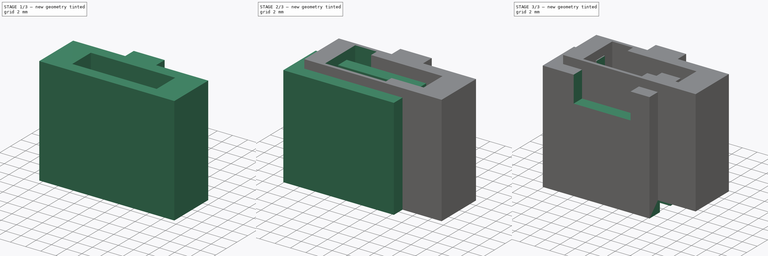
[diagram: build sequence overview — one tinted view per stage of 3, left to right]
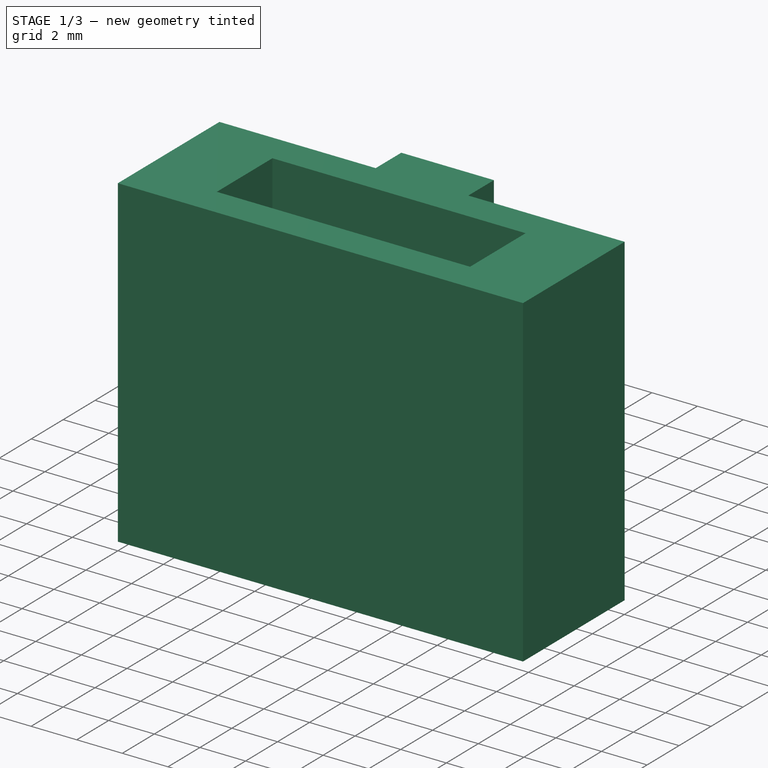
[diagram: stage 1 of 3 — iso view after this stage's code; geometry added in this stage tinted green]
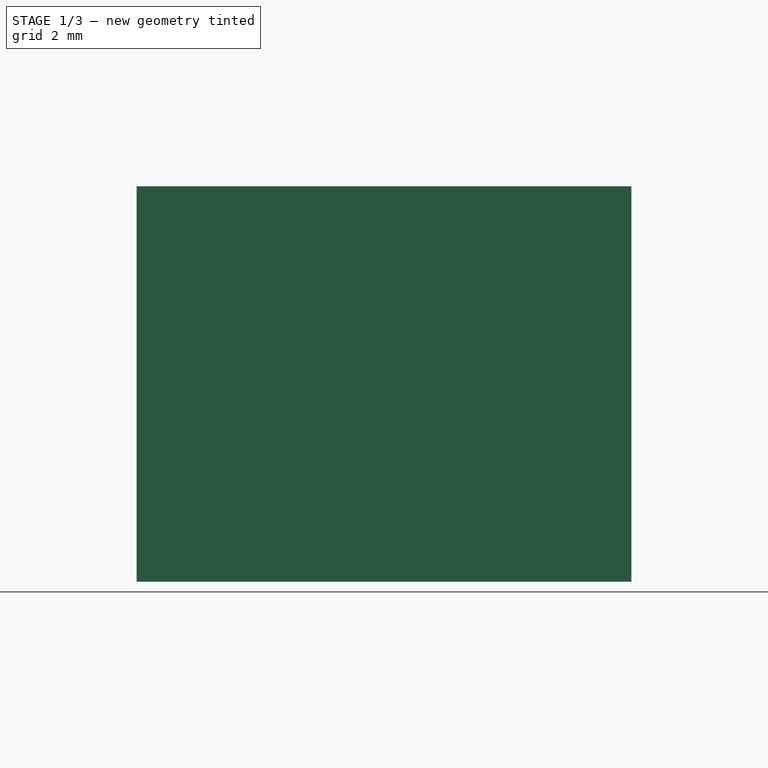
[diagram: stage 1 of 3 — front view after this stage's code; geometry added in this stage tinted green]
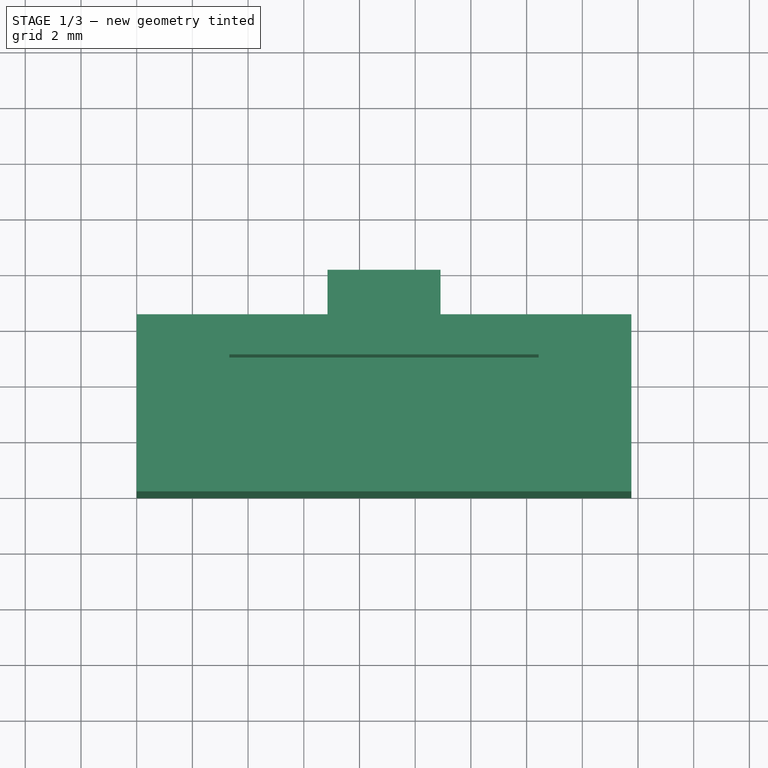
[diagram: stage 1 of 3 — top view after this stage's code; geometry added in this stage tinted green]
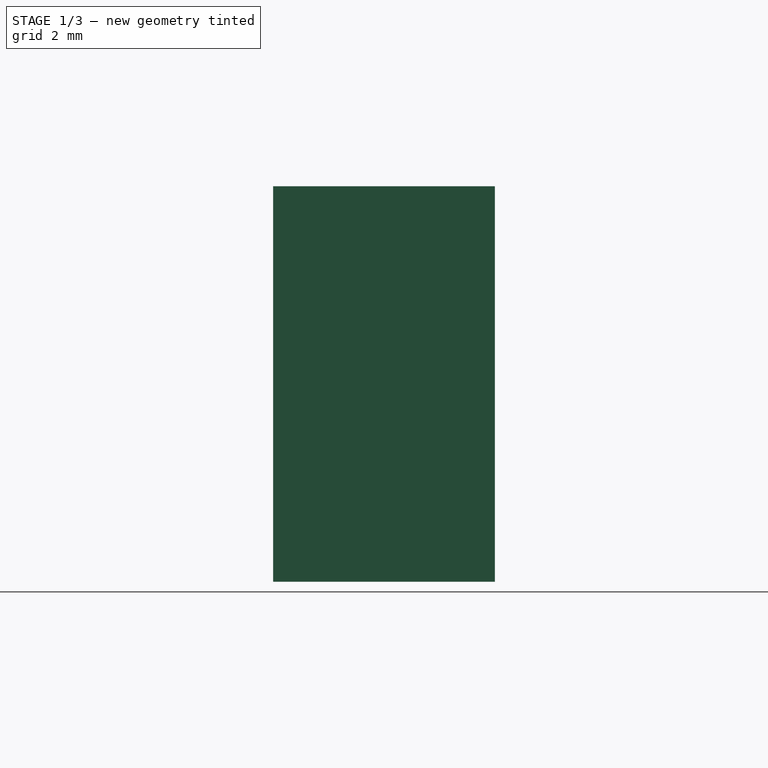
[diagram: stage 1 of 3 — right view after this stage's code; geometry added in this stage tinted green]
FCSTD DOCUMENT  (FreeCAD 0.21R33668 +7 (Git))
Label: stlink-conn
License: All rights reserved
LicenseURL: http://en.wikipedia.org/wiki/All_rights_reserved
objects: Sketcher::SketchObject×6, PartDesign::Pad×3, PartDesign::Pocket×3, PartDesign::Body×2, Spreadsheet::Sheet×1
note: 20 computed .brp shape members not serialized (recipe doc carries the construction recipe); baked Part::Feature solids carry a one-line shape summary decoded from their .brp

FEATURE [PartDesign::Body] Body  label="A"
  Group = -> [Sketch,Pad,Sketch001,Pocket,Sketch002,Pad001]
  Origin = -> Origin
  Placement = pos=(0,0,1.6) rot=(0,0,1;0rad)
  Tip = -> Pad001
  expr: .Placement.Base.z = <<Param>>.T_WALL
FEATURE [Sketcher::SketchObject] Sketch003  label="BBaseSketch"
  FullyConstrained = true
  MapMode = 5
  Support = -> [XY_Plane001]
  expr: .Constraints.X1 = <<Param>>.W_BASE_B - 2 * <<Param>>.T_XY
  expr: .Constraints.Y1 = <<Param>>.H_BASE_B - 2 * <<Param>>.T_XY
  expr: Constraints[21] = <<Param>>.W_CODE_B - 2 * <<Param>>.T_XY
  expr: Constraints[22] = <<Param>>.T_WALL
  sketch-geometry (8):
    g0: LineSegment StartX=0 StartY=0 StartZ=0 EndX=17.76 EndY=0 EndZ=0
    g1: LineSegment StartX=17.76 StartY=0 StartZ=0 EndX=17.76 EndY=6.36 EndZ=0
    g2: LineSegment StartX=0 StartY=6.36 StartZ=0 EndX=0 EndY=0 EndZ=0
    g3: LineSegment StartX=10.91 StartY=6.36 StartZ=0 EndX=10.91 EndY=7.96 EndZ=0
    g4: LineSegment StartX=10.91 StartY=7.96 StartZ=0 EndX=6.85 EndY=7.96 EndZ=0
    g5: LineSegment StartX=6.85 StartY=7.96 StartZ=0 EndX=6.85 EndY=6.36 EndZ=0
    g6: LineSegment StartX=17.76 StartY=6.36 StartZ=0 EndX=10.91 EndY=6.36 EndZ=0
    g7: LineSegment StartX=6.85 StartY=6.36 StartZ=0 EndX=0 EndY=6.36 EndZ=0
  constraints (23):
    c: Coincident(g0,g1)
    c: Coincident(g1,g6)
    c: Coincident(g2,g0)
    c: Horizontal(g0)
    c: Vertical(g1)
    c: Vertical(g2)
    c: Coincident(g0,g-1)
    c: DistanceX(g1) = 17.76  'X1'
    c: DistanceY(g1) = 6.36  'Y1'
    c: Coincident(g3,g4)
    c: Coincident(g4,g5)
    c: Coincident(g5,g7)
    c: Horizontal(g4)
    c: Vertical(g3)
    c: Vertical(g5)
    c: Horizontal(g6)
    c: Horizontal(g7)
    c: Coincident(g3,g6)
    c: Coincident(g2,g7)
    c: Horizontal(g5,g3)
    c: Equal(g7,g6)
    c: DistanceX(g4,g4) = 4.06
    c: DistanceY(g3,g3) = 1.6
FEATURE [PartDesign::Pad] Pad002  label="BBasePad"
  Direction = (0,0,1)
  Length = 14.2
  Length2 = 10
  Profile = -> Sketch003
  ReferenceAxis = -> Sketch003 [N_Axis]
  Type = 0
  expr: Length = <<Param>>.D_BASE_B + <<Param>>.D_EXTEND_B + <<Param>>.T_WALL - <<Param>>.T_Z
FEATURE [Sketcher::SketchObject] Sketch004  label="BPinInletSketch"
  AttachmentOffset = pos=(0,0,7.7) rot=(0,0,1;0rad)
  FullyConstrained = true
  MapMode = 5
  Placement = pos=(0,0,7.7) rot=(0,0,1;0rad)
  Support = -> [XY_Plane001]
  expr: .AttachmentOffset.Base.z = <<Param>>.T_WALL + <<Param>>.D_EXTEND_B
  expr: Constraints[19] = <<BBaseSketch>>.Constraints.X1
  expr: Constraints[20] = <<BBaseSketch>>.Constraints.Y1
  expr: Constraints[21] = 4 * <<Param>>.S_PIN + 2 * (<<Param>>.R_PIN + <<Param>>.T_XY)
  expr: Constraints[22] = <<Param>>.S_PIN + 2 * (<<Param>>.R_PIN + <<Param>>.T_XY)
  sketch-geometry (9):
    g0: LineSegment StartX=3.33 StartY=1.44 StartZ=0 EndX=14.43 EndY=1.44 EndZ=0
    g1: LineSegment StartX=14.43 StartY=1.44 StartZ=0 EndX=14.43 EndY=4.92 EndZ=0
    g2: LineSegment StartX=14.43 StartY=4.92 StartZ=0 EndX=3.33 EndY=4.92 EndZ=0
    g3: LineSegment StartX=3.33 StartY=4.92 StartZ=0 EndX=3.33 EndY=1.44 EndZ=0
    g4: LineSegment StartX=0 StartY=0 StartZ=0 EndX=17.76 EndY=0 EndZ=0
    g5: LineSegment StartX=17.76 StartY=0 StartZ=0 EndX=17.76 EndY=6.36 EndZ=0
    g6: LineSegment StartX=17.76 StartY=6.36 StartZ=0 EndX=0 EndY=6.36 EndZ=0
    g7: LineSegment StartX=0 StartY=6.36 StartZ=0 EndX=0 EndY=0 EndZ=0
    g8: GeomPoint X=8.88 Y=3.18 Z=0
  constraints (23):
    c: Coincident(g0,g1)
    c: Coincident(g1,g2)
    c: Coincident(g2,g3)
    c: Coincident(g3,g0)
    c: Horizontal(g0)
    c: Horizontal(g2)
    c: Vertical(g1)
    c: Vertical(g3)
    c: Coincident(g4,g5)
    c: Coincident(g5,g6)
    c: Coincident(g6,g7)
    c: Coincident(g7,g4)
    c: Horizontal(g4)
    c: Horizontal(g6)
    c: Vertical(g5)
    c: Vertical(g7)
    c: Coincident(g4,g-1)
    c: Symmetric(g5,g4,g8)
    c: Symmetric(g0,g1,g8)
    c: DistanceX(g5) = 17.76
    c: DistanceY(g5) = 6.36
    c: DistanceX(g0,g0) = 11.1
    c: DistanceY(g1,g1) = 3.48
FEATURE [PartDesign::Pocket] Pocket001  label="BPinInletPocket"
  BaseFeature = -> Pad002
  Direction = (0,0,-1)
  Length = 5
  Length2 = 5
  Profile = -> Sketch004
  ReferenceAxis = -> Sketch004 [N_Axis]
  Reversed = true
  Type = 1
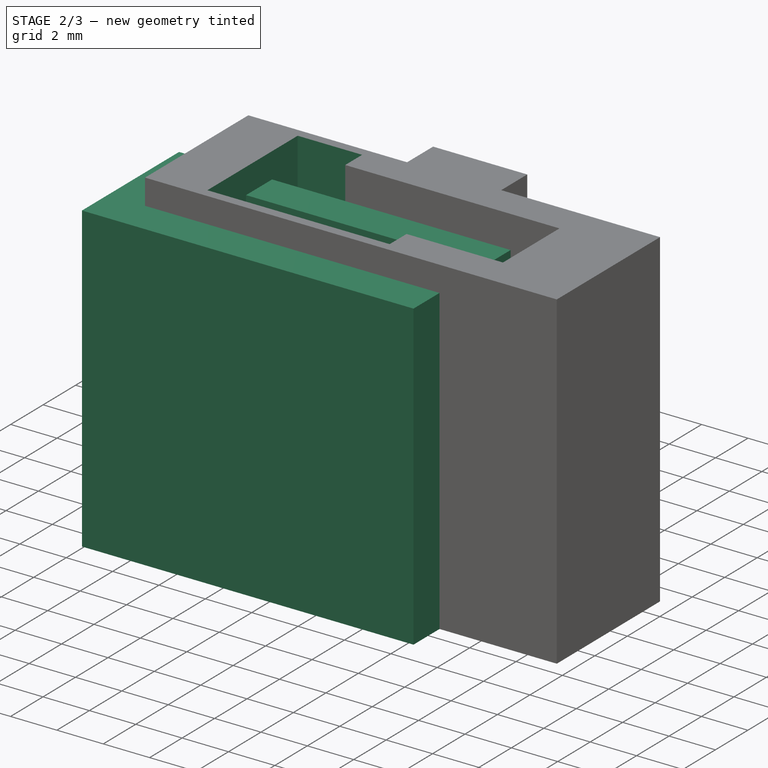
[diagram: stage 2 of 3 — iso view after this stage's code; geometry added in this stage tinted green]
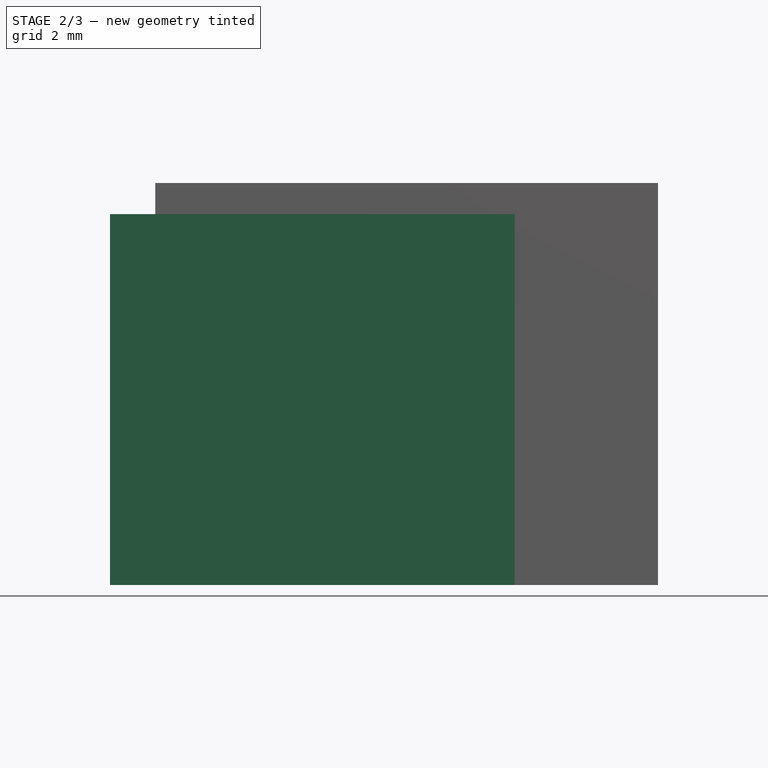
[diagram: stage 2 of 3 — front view after this stage's code; geometry added in this stage tinted green]
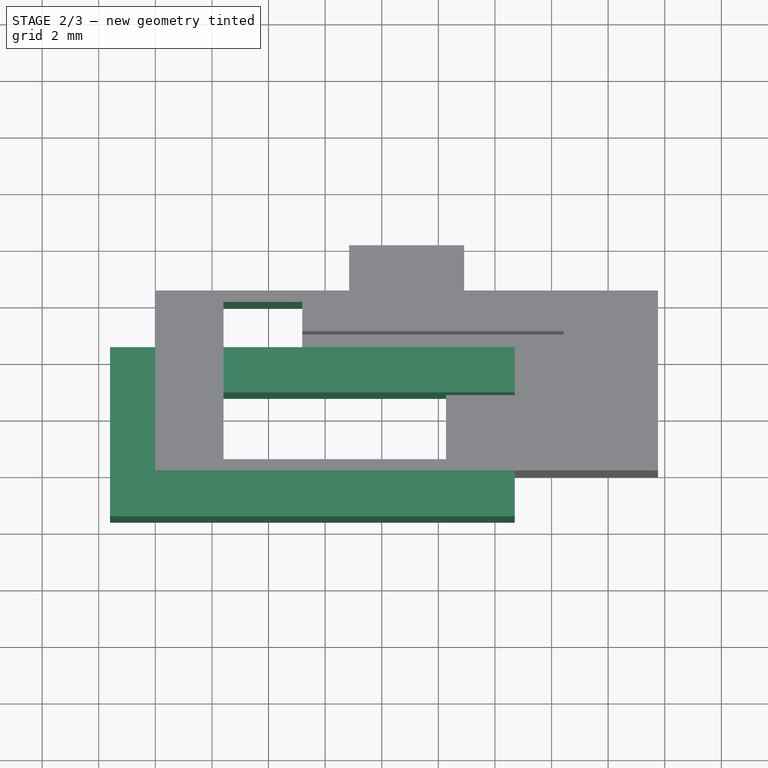
[diagram: stage 2 of 3 — top view after this stage's code; geometry added in this stage tinted green]
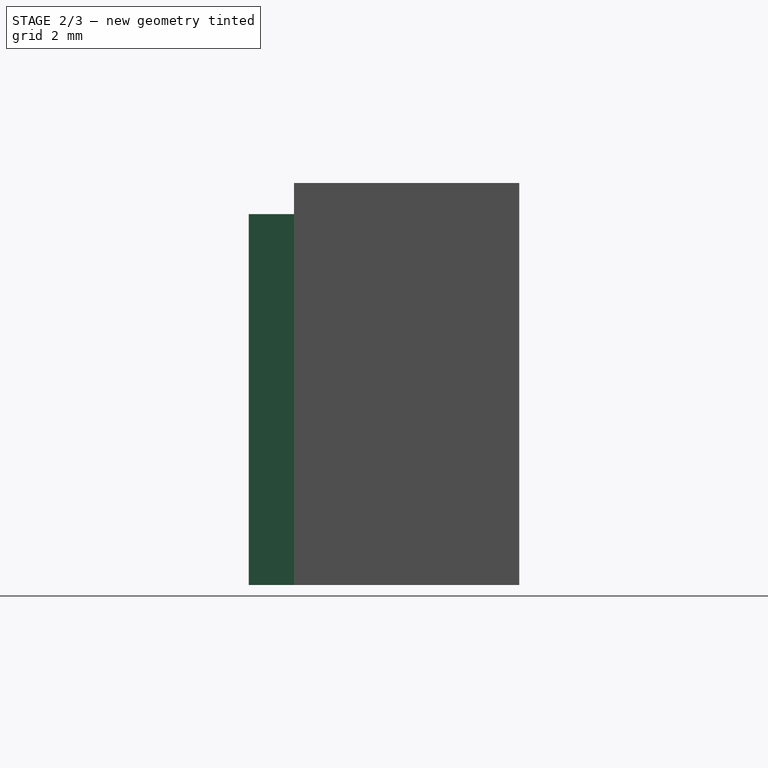
[diagram: stage 2 of 3 — right view after this stage's code; geometry added in this stage tinted green]
FEATURE [Spreadsheet::Sheet] Spreadsheet  label="Param"
  cells = A1='Key; B1='Value; C1='Description; A2='T_XY; B2(T_XY)==0.12 mm; C2='X/Y tolerancy.; A3='T_Z; B3(T_Z)==0.1 mm; C3='Z tolerancy.; A4='T_WALL; B4(T_WALL)==1.6 mm; C4='Wall thickness.; A5='D_BASE_A; B5(D_BASE_A)==12 mm; C5='Base depth for connector A.; A6='W_BASE_A; B6(W_BASE_A)==0.5 in; C6='Base width for connector A.; A7='H_BASE_A; B7(H_BASE_A)==0.1 in; C7='Base height for connector A.; A8='D_EXTEND_A; B8(D_EXTEND_A)==1.2 mm; C8='Extended depth for connector A coding.; A9='W_BASE_B; B9(W_BASE_B)==18 mm; C9='Base width of connector B.; A10='H_BASE_B; B10(H_BASE_B)==6.6 mm; C10='Base height of connector B.; A11='D_BASE_B; B11(D_BASE_B)==6.6 mm; C11='Base height of connector B.; A12='D_EXTEND_B; B12(D_EXTEND_B)==6.1 mm; C12='Extended depth for connector B coding.; A13='W_CODE_B; B13(W_CODE_B)==4.3 mm; C13='Connector B coding latch width.; A14='R_CABLE; B14(R_CABLE)==0.03 in; C14='Cable radius.; A15='R_PIN; B15(R_PIN)==0.35 mm; C15='Pin diameter.; A16='S_PIN; B16(S_PIN)==0.1 in; C16='Pin spacing.
FEATURE [Sketcher::SketchObject] Sketch  label="ABaseSketch"
  FullyConstrained = true
  MapMode = 5
  Support = -> [XY_Plane]
  expr: Constraints[20] = <<Param>>.T_WALL
  expr: Constraints[6] = <<Param>>.W_BASE_A
  expr: Constraints[7] = <<Param>>.H_BASE_A + 2 * <<Param>>.T_XY
  sketch-geometry (9):
    g0: LineSegment StartX=0 StartY=0 StartZ=0 EndX=12.7 EndY=0 EndZ=0
    g1: LineSegment StartX=12.7 StartY=2.78 StartZ=0 EndX=0 EndY=2.78 EndZ=0
    g2: LineSegment StartX=0 StartY=2.78 StartZ=0 EndX=0 EndY=0 EndZ=0
    g3: LineSegment StartX=-1.6 StartY=4.38 StartZ=0 EndX=12.7 EndY=4.38 EndZ=0
    g4: LineSegment StartX=12.7 StartY=-1.6 StartZ=0 EndX=-1.6 EndY=-1.6 EndZ=0
    g5: LineSegment StartX=-1.6 StartY=-1.6 StartZ=0 EndX=-1.6 EndY=4.38 EndZ=0
    g6: LineSegment StartX=12.7 StartY=4.38 StartZ=0 EndX=12.7 EndY=2.78 EndZ=0
    g7: LineSegment StartX=12.7 StartY=0 StartZ=0 EndX=12.7 EndY=-1.6 EndZ=0
    g8: LineSegment StartX=0 StartY=2.78 StartZ=0 EndX=-1.6 EndY=2.78 EndZ=0
  constraints (26):
    c: Coincident(g1,g2)
    c: Coincident(g2,g0)
    c: Horizontal(g0)
    c: Horizontal(g1)
    c: Vertical(g2)
    c: Coincident(g0,g-1)
    c: DistanceX(g0,g0) = 12.7
    c: DistanceY(g0,g1) = 2.78
    c: Coincident(g3,g6)
    c: Coincident(g7,g4)
    c: Coincident(g4,g5)
    c: Coincident(g5,g3)
    c: Horizontal(g3)
    c: Horizontal(g4)
    c: Vertical(g5)
    c: Vertical(g6)
    c: Vertical(g7)
    c: Coincident(g1,g6)
    c: Coincident(g0,g7)
    c: Equal(g6,g7)
    c: DistanceY(g7,g7) = 1.6
    c: Coincident(g8,g1)
    c: PointOnObject(g8,g5)
    c: Horizontal(g8)
    c: Equal(g8,g6)
    c: Vertical(g1,g0)
FEATURE [PartDesign::Pad] Pad  label="ABasePad"
  Direction = (0,0,1)
  Length = 13.1
  Length2 = 10
  Profile = -> Sketch
  ReferenceAxis = -> Sketch [N_Axis]
  Type = 0
  expr: Length = <<Param>>.D_BASE_A + <<Param>>.D_EXTEND_A - <<Param>>.T_Z
FEATURE [Sketcher::SketchObject] Sketch005  label="BCableInletSketch"
  FullyConstrained = true
  MapMode = 5
  Support = -> [XY_Plane001]
  expr: Constraints[15] = <<BBaseSketch>>.Constraints.X1
  expr: Constraints[16] = <<BBaseSketch>>.Constraints.Y1
  expr: Constraints[27] = 3 * <<Param>>.S_PIN + 2 * <<Param>>.T_XY
  expr: Constraints[35] = 5 * <<Param>>.S_PIN + 2 * <<Param>>.T_XY
  expr: Constraints[5] = <<Param>>.S_PIN + 2 * <<Param>>.T_XY
  sketch-geometry (15):
    g0: LineSegment StartX=2.41 StartY=5.96 StartZ=0 EndX=5.19 EndY=5.96 EndZ=0
    g1: LineSegment StartX=2.41 StartY=5.96 StartZ=0 EndX=2.41 EndY=0.4 EndZ=0
    g2: LineSegment StartX=2.41 StartY=0.4 StartZ=0 EndX=10.27 EndY=0.4 EndZ=0
    g3: LineSegment StartX=0 StartY=0 StartZ=0 EndX=17.76 EndY=0 EndZ=0
    g4: LineSegment StartX=17.76 StartY=0 StartZ=0 EndX=17.76 EndY=6.36 EndZ=0
    g5: LineSegment StartX=17.76 StartY=6.36 StartZ=0 EndX=0 EndY=6.36 EndZ=0
    g6: LineSegment StartX=0 StartY=6.36 StartZ=0 EndX=0 EndY=0 EndZ=0
    g7: LineSegment StartX=15.35 StartY=0.4 StartZ=0 EndX=15.35 EndY=0 EndZ=0
    g8: LineSegment StartX=5.19 StartY=5.96 StartZ=0 EndX=5.19 EndY=6.36 EndZ=0
    g9: LineSegment StartX=2.41 StartY=0.4 StartZ=0 EndX=0 EndY=0.4 EndZ=0
    g10: LineSegment StartX=15.35 StartY=0.4 StartZ=0 EndX=17.76 EndY=0.4 EndZ=0
    g11: LineSegment StartX=10.27 StartY=0.4 StartZ=0 EndX=15.35 EndY=0.4 EndZ=0
    g12: LineSegment StartX=10.27 StartY=3.18 StartZ=0 EndX=10.27 EndY=0.4 EndZ=0
    g13: LineSegment StartX=5.19 StartY=5.96 StartZ=0 EndX=5.19 EndY=3.18 EndZ=0
    g14: LineSegment StartX=5.19 StartY=3.18 StartZ=0 EndX=10.27 EndY=3.18 EndZ=0
  constraints (44):
    c: Coincident(g0,g13)
    c: Horizontal(g0)
    c: Coincident(g1,g2)
    c: Horizontal(g2)
    c: Vertical(g1)
    c: DistanceX(g0,g0) = 2.78
    c: Coincident(g3,g4)
    c: Coincident(g4,g5)
    c: Coincident(g5,g6)
    c: Coincident(g6,g3)
    c: Horizontal(g3)
    c: Horizontal(g5)
    c: Vertical(g4)
    c: Vertical(g6)
    c: Coincident(g3,g-1)
    c: DistanceX(g4) = 17.76
    c: DistanceY(g4) = 6.36
    c: PointOnObject(g7,g3)
    c: Vertical(g7)
    c: Coincident(g8,g0)
    c: PointOnObject(g8,g5)
    c: Vertical(g8)
    c: Equal(g8,g7)
    c: PointOnObject(g9,g6)
    c: Horizontal(g9)
    c: PointOnObject(g10,g4)
    c: Horizontal(g10)
    c: DistanceX(g2,g2) = 7.86
    c: Equal(g10,g9)
    c: Coincident(g12,g2)
    c: Coincident(g1,g9)
    c: Coincident(g11,g12)
    c: Coincident(g11,g7)
    c: Horizontal(g11)
    c: Coincident(g10,g7)
    c: DistanceX(g1,g7) = 12.94
    c: Coincident(g14,g12)
    c: Vertical(g12)
    c: Coincident(g13,g14)
    c: Vertical(g13)
    c: Horizontal(g14)
    c: Equal(g0,g12)
    c: Coincident(g0,g1)
    c: Equal(g12,g13)
FEATURE [PartDesign::Pocket] Pocket002  label="BCableInletPocket"
  BaseFeature = -> Pocket001
  Direction = (0,0,-1)
  Length = 5
  Length2 = 5
  Profile = -> Sketch005
  ReferenceAxis = -> Sketch005 [N_Axis]
  Reversed = true
  Type = 1
FEATURE [PartDesign::Body] Body001  label="B"
  Group = -> [Sketch003,Pad002,Sketch004,Pocket001,Sketch005,Pocket002]
  Origin = -> Origin001
  Tip = -> Pocket002
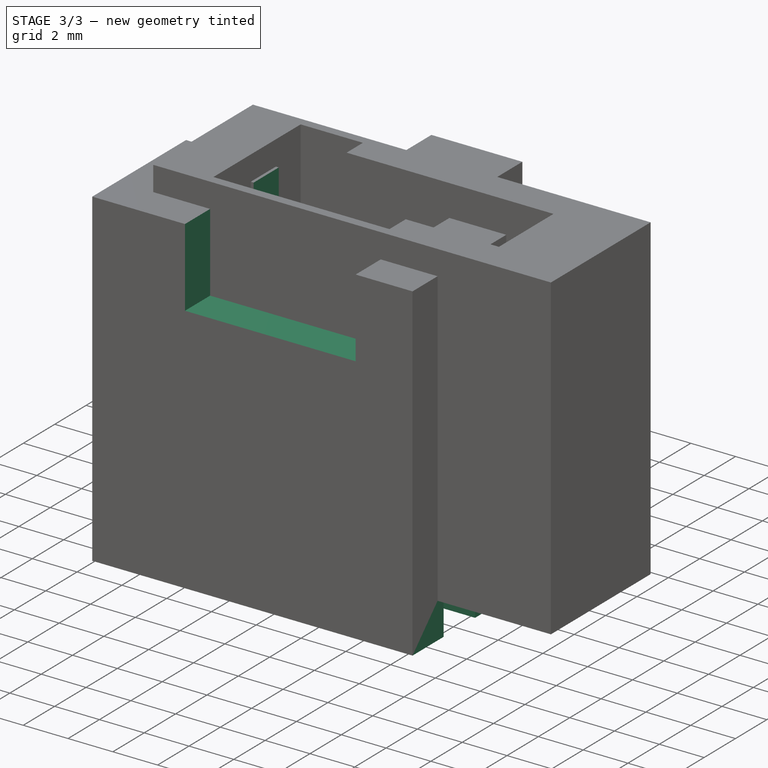
[diagram: stage 3 of 3 — iso view after this stage's code; geometry added in this stage tinted green]
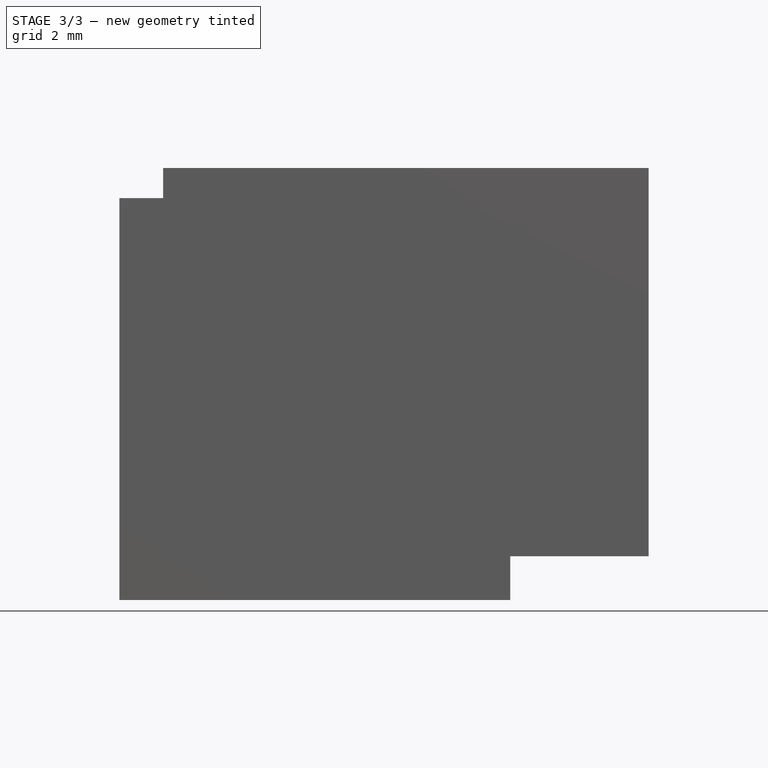
[diagram: stage 3 of 3 — front view after this stage's code; geometry added in this stage tinted green]
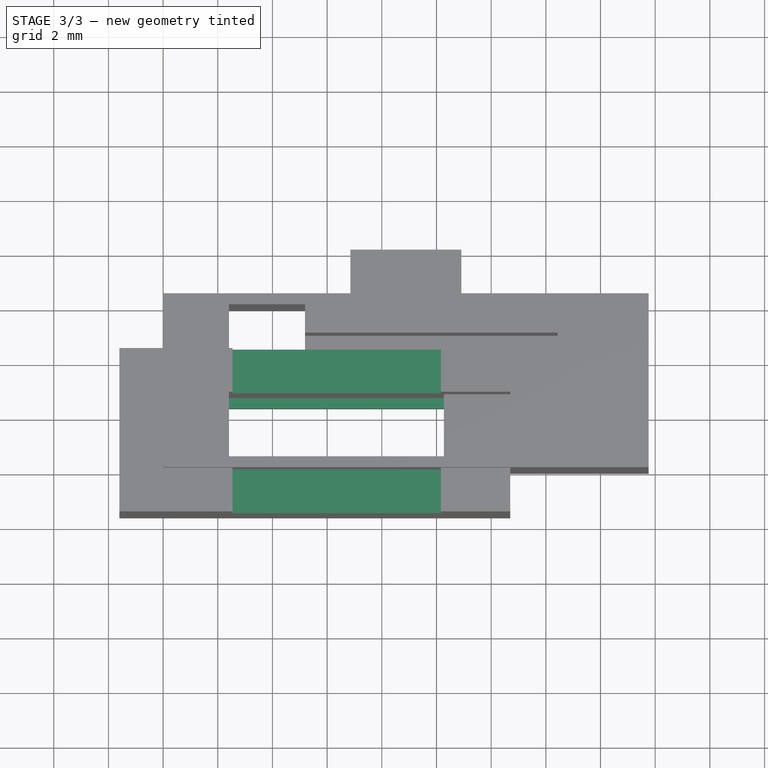
[diagram: stage 3 of 3 — top view after this stage's code; geometry added in this stage tinted green]
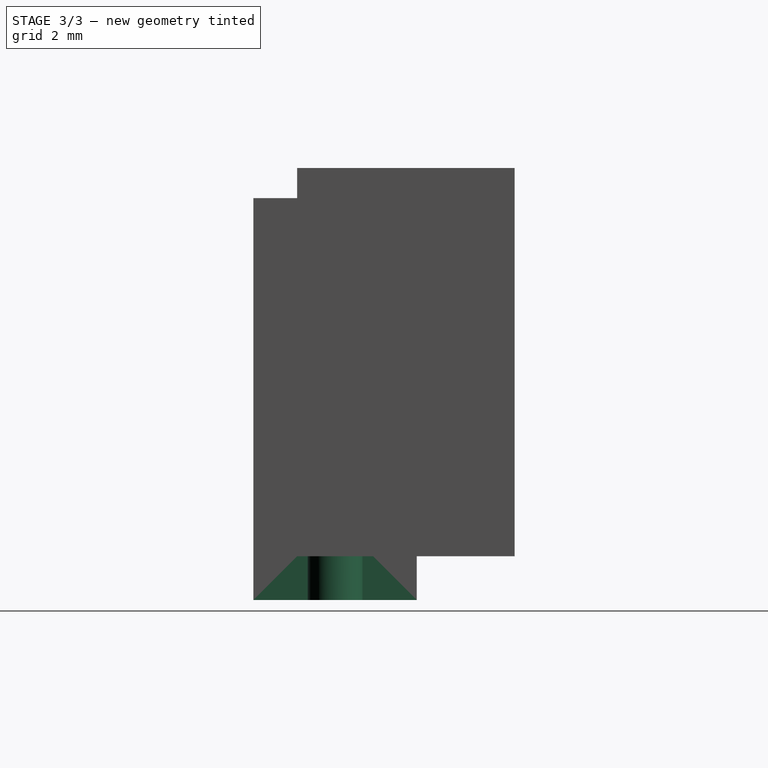
[diagram: stage 3 of 3 — right view after this stage's code; geometry added in this stage tinted green]
FEATURE [Sketcher::SketchObject] Sketch001  label="APullSketch"
  AttachmentOffset = pos=(0,0,9.6) rot=(0,0,1;0rad)
  FullyConstrained = true
  MapMode = 5
  Placement = pos=(0,0,9.6) rot=(0,0,1;0rad)
  Support = -> [XY_Plane]
  expr: .AttachmentOffset.Base.z = <<Param>>.D_BASE_A + <<Param>>.D_EXTEND_A - (<<Param>>.D_EXTEND_A + <<Param>>.D_BASE_A * 0.2)
  expr: Constraints[10] = <<Param>>.W_BASE_A * 0.2
  expr: Constraints[11] = <<Param>>.W_BASE_A * 0.8
  expr: Constraints[8] = -<<Param>>.T_WALL
  expr: Constraints[9] = <<Param>>.H_BASE_A + 2 * <<Param>>.T_XY + 2 * <<Param>>.T_WALL
  sketch-geometry (4):
    g0: LineSegment StartX=2.54 StartY=4.38 StartZ=0 EndX=10.16 EndY=4.38 EndZ=0
    g1: LineSegment StartX=10.16 StartY=4.38 StartZ=0 EndX=10.16 EndY=-1.6 EndZ=0
    g2: LineSegment StartX=10.16 StartY=-1.6 StartZ=0 EndX=2.54 EndY=-1.6 EndZ=0
    g3: LineSegment StartX=2.54 StartY=-1.6 StartZ=0 EndX=2.54 EndY=4.38 EndZ=0
  constraints (12):
    c: Coincident(g0,g1)
    c: Coincident(g1,g2)
    c: Coincident(g2,g3)
    c: Coincident(g3,g0)
    c: Horizontal(g0)
    c: Horizontal(g2)
    c: Vertical(g1)
    c: Vertical(g3)
    c: DistanceY(g2) = -1.6
    c: DistanceY(g3,g3) = 5.98
    c: DistanceX(g2) = 2.54
    c: DistanceX(g1) = 10.16
FEATURE [PartDesign::Pocket] Pocket  label="APullPocket"
  BaseFeature = -> Pad
  Direction = (0,0,-1)
  Length = 2.36
  Length2 = 5
  Profile = -> Sketch001
  ReferenceAxis = -> Sketch001 [N_Axis]
  Reversed = true
  Type = 1
FEATURE [Sketcher::SketchObject] Sketch002  label="ACableInletSketch"
  FullyConstrained = true
  MapMode = 5
  Support = -> [XY_Plane]
  expr: Constraints[12] = <<Param>>.H_BASE_A + 2 * <<Param>>.T_XY
  expr: Constraints[19] = <<Param>>.T_WALL + <<Param>>.W_BASE_A
  expr: Constraints[22] = <<Param>>.T_WALL
  expr: Constraints[27] = <<Param>>.R_CABLE + 2 * <<Param>>.T_XY
  expr: Constraints[28] = -<<Param>>.T_WALL
  expr: Constraints[30] = <<Param>>.H_BASE_A + 2 * <<Param>>.T_WALL + 2 * <<Param>>.T_XY
  sketch-geometry (12):
    g0: LineSegment StartX=-1.6 StartY=4.38 StartZ=0 EndX=12.7 EndY=4.38 EndZ=0
    g1: LineSegment StartX=12.7 StartY=4.38 StartZ=0 EndX=12.7 EndY=2.392 EndZ=0
    g2: LineSegment StartX=12.7 StartY=-1.6 StartZ=0 EndX=-1.6 EndY=-1.6 EndZ=0
    g3: LineSegment StartX=-1.6 StartY=-1.6 StartZ=0 EndX=-1.6 EndY=4.38 EndZ=0
    g4: LineSegment StartX=1.002 StartY=2.392 StartZ=0 EndX=12.7 EndY=2.392 EndZ=0
    g5: LineSegment StartX=12.7 StartY=0.388 StartZ=0 EndX=1.002 EndY=0.388 EndZ=0
    g6: LineSegment StartX=12.7 StartY=0.388 StartZ=0 EndX=12.7 EndY=-1.6 EndZ=0
    g7: LineSegment StartX=0 StartY=2.78 StartZ=0 EndX=-1.6 EndY=2.78 EndZ=0
    g8: ArcOfCircle CenterX=1.002 CenterY=1.39 CenterZ=0 NormalX=0 NormalY=0 NormalZ=1 AngleXU=0 Radius=1.002 StartAngle=1.5708 EndAngle=4.71239
    g9: GeomPoint X=0 Y=0 Z=0
    g10: GeomPoint X=0 Y=2.78 Z=0
    g11: LineSegment StartX=0 StartY=2.78 StartZ=0 EndX=0 EndY=0 EndZ=0
  constraints (31):
    c: Coincident(g0,g1)
    c: Coincident(g6,g2)
    c: Coincident(g2,g3)
    c: Coincident(g3,g0)
    c: Horizontal(g0)
    c: Horizontal(g2)
    c: Vertical(g1)
    c: Vertical(g3)
    c: Horizontal(g4)
    c: Horizontal(g5)
    c: Vertical(g5,g1)
    c: Coincident(g9,g-1)
    c: DistanceY(g9,g10) = 2.78
    c: Coincident(g5,g6)
    c: Coincident(g1,g4)
    c: Coincident(g7,g10)
    c: PointOnObject(g7,g3)
    c: Horizontal(g7)
    c: Equal(g1,g6)
    c: DistanceX(g2,g2) = 14.3
    c: Vertical(g6)
    c: Tangent(g5,g8) = 1.5708
    c: DistanceX(g7,g7) = 1.6
    c: Tangent(g4,g8) = 1.5708
    c: Coincident(g11,g7)
    c: Coincident(g11,g9)
    c: Vertical(g11)
    c: Radius(g8) = 1.002
    c: DistanceY(g2) = -1.6
    c: Tangent(g8,g11)
    c: DistanceY(g3,g3) = 5.98
FEATURE [PartDesign::Pad] Pad001  label="ACableInletPad"
  BaseFeature = -> Pocket
  Direction = (0,0,1)
  Length = 1.6
  Length2 = 10
  Profile = -> Sketch002
  ReferenceAxis = -> Sketch002 [N_Axis]
  Refine = true
  Reversed = true
  Type = 0
  expr: Length = <<Param>>.T_WALL
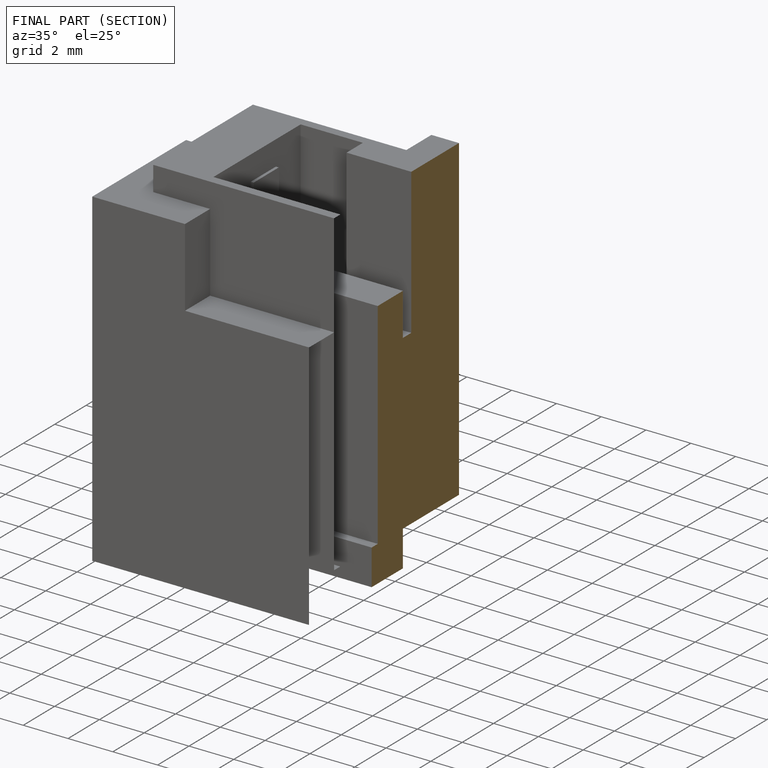
[diagram: finished part — half-section view (interior)]
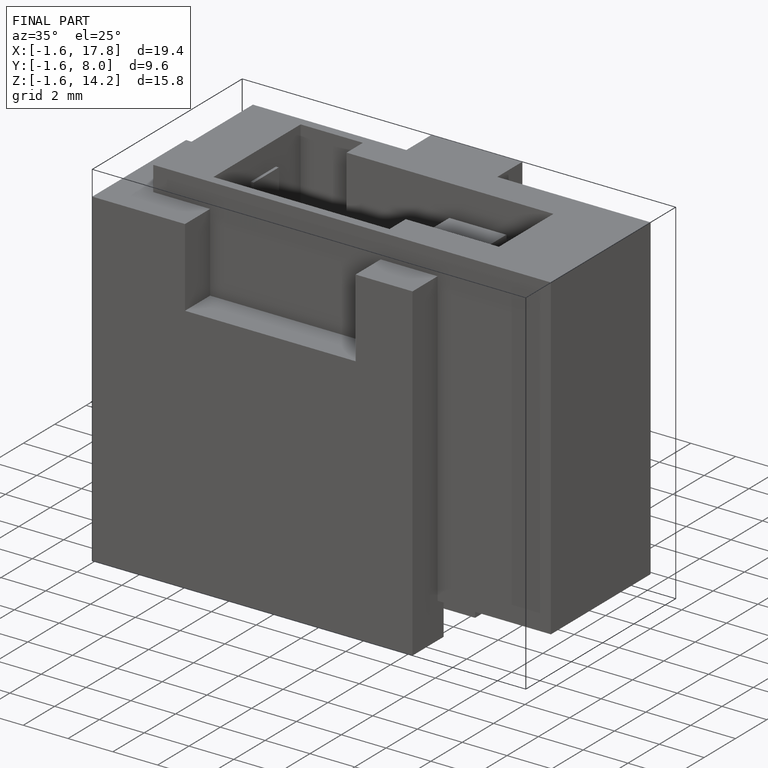
[diagram: finished part — iso view with bounding-box wireframe]
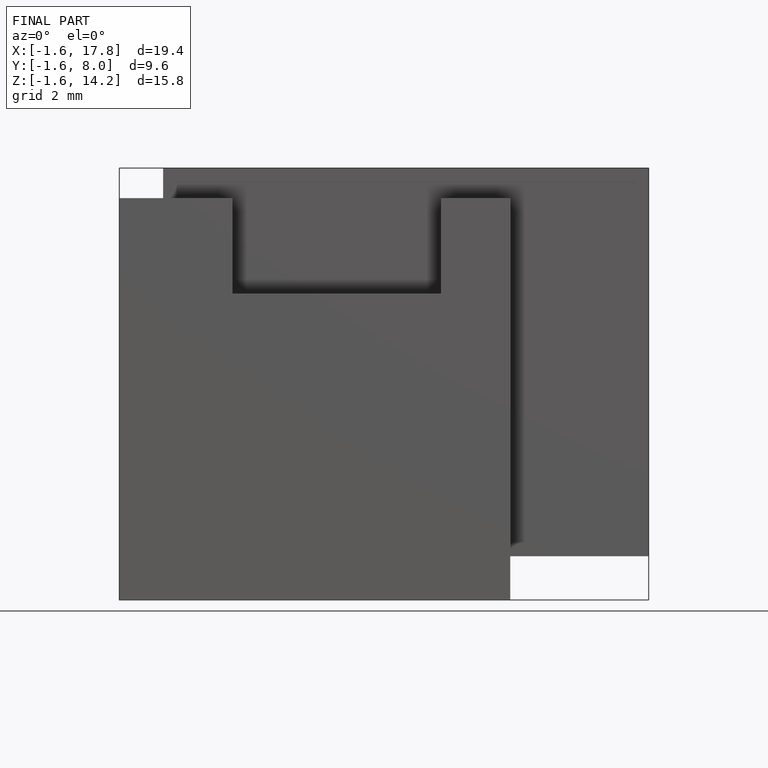
[diagram: finished part — front view with bounding-box wireframe]
